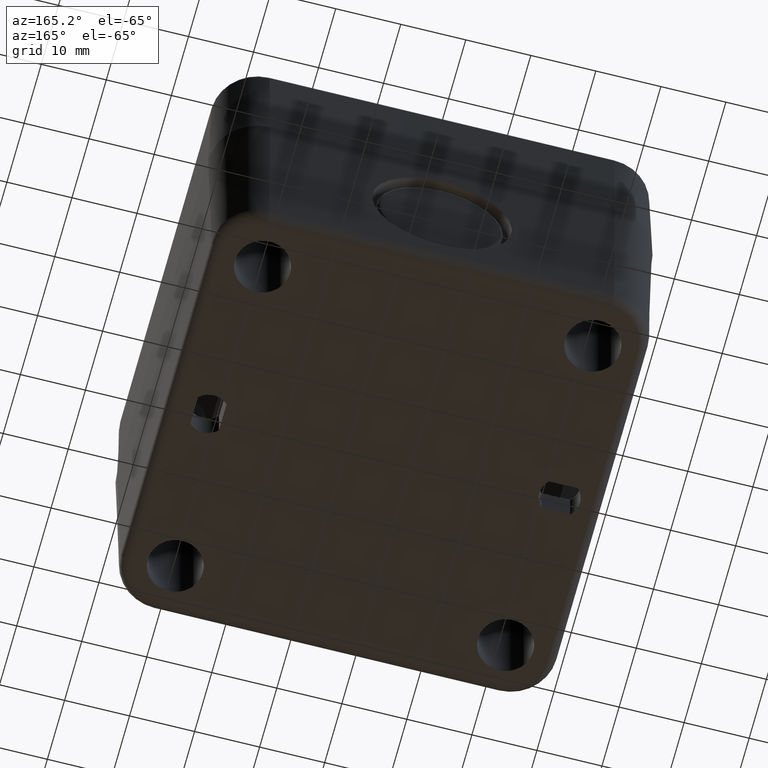
[diagram: clean part render]
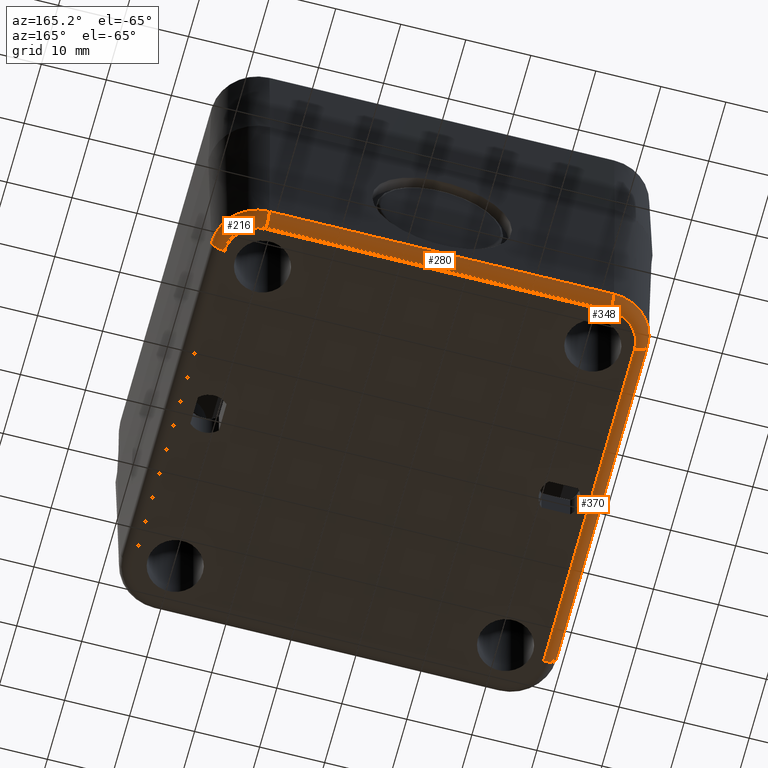
[diagram: same view with one multi-face feature highlighted, each face labeled with its STEP entity id]
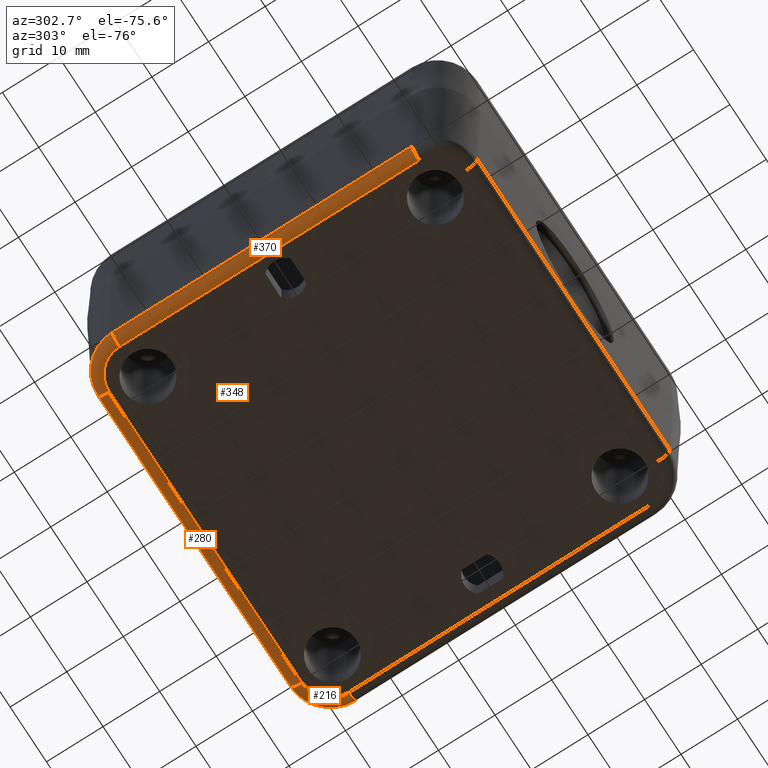
[diagram: same view with one multi-face feature highlighted, each face labeled with its STEP entity id]
A machine part, auxiliary view. The highlighted faces form ONE feature: a constant-radius fillet chain: 4 tangent blend faces with common blend radius 2 mm. The faces share edges in the B-rep.
A second angle (auxiliary view) of the same feature is appended — it is thin or edge-on in the first view.
Their STEP definitions:
[1] entity #370 (Cylinder):
#286=CARTESIAN_POINT('',(-49.406850161259896,-16.327564896536423,1.965095187125426));
#287=VERTEX_POINT('',#286);
#288=CARTESIAN_POINT('',(-47.407154770947116,-16.327564896536419,0.0));
#289=VERTEX_POINT('',#288);
#290=CARTESIAN_POINT('',(-47.407154770947116,-16.327564896536419,1.999999999999993));
#291=DIRECTION('',(2.220108E-015,-1.0,3.875213E-017));
#292=DIRECTION('',(-0.999847695156391,-2.220446E-015,-0.017452406437283));
#293=AXIS2_PLACEMENT_3D('',#290,#291,#292);
#294=CIRCLE('',#293,1.999999999999994);
#295=EDGE_CURVE('',#287,#289,#294,.T.);
#320=CARTESIAN_POINT('',(-47.407154770947145,36.672435103463599,0.0));
#321=VERTEX_POINT('',#320);
#322=CARTESIAN_POINT('',(-49.406850161259925,36.672435103463599,1.965095187125426));
#323=VERTEX_POINT('',#322);
#324=CARTESIAN_POINT('',(-47.407154770947145,36.672435103463599,1.999999999999993));
#325=DIRECTION('',(0.0,1.0,0.0));
#326=DIRECTION('',(0.0,0.0,-1.0));
#327=AXIS2_PLACEMENT_3D('',#324,#325,#326);
#328=CIRCLE('',#327,1.999999999999993);
#329=EDGE_CURVE('',#321,#323,#328,.T.);
#349=CARTESIAN_POINT('',(-47.407154770947116,-3.077564896536415,2.0));
#350=DIRECTION('',(5.027425E-016,-1.0,0.0));
#351=DIRECTION('',(-0.700909264299853,-3.891421E-016,-0.713250449154180));
#352=AXIS2_PLACEMENT_3D('',#349,#350,#351);
#353=CYLINDRICAL_SURFACE('',#352,2.0);
#354=ORIENTED_EDGE('',*,*,#295,.F.);
#355=CARTESIAN_POINT('',(-49.406850161259896,-16.327564896536423,1.965095187125426));
#356=DIRECTION('',(0.0,1.0,0.0));
#357=VECTOR('',#356,53.000000000000021);
#358=LINE('',#355,#357);
#359=EDGE_CURVE('',#287,#323,#358,.T.);
#360=ORIENTED_EDGE('',*,*,#359,.T.);
#361=ORIENTED_EDGE('',*,*,#329,.F.);
#362=CARTESIAN_POINT('',(-47.407154770947145,36.672435103463599,0.0));
#363=DIRECTION('',(0.0,-1.0,0.0));
#364=VECTOR('',#363,53.000000000000014);
#365=LINE('',#362,#364);
#366=EDGE_CURVE('',#321,#289,#365,.T.);
#367=ORIENTED_EDGE('',*,*,#366,.T.);
#368=EDGE_LOOP('',(#354,#360,#361,#367));
#369=FACE_OUTER_BOUND('',#368,.T.);
#370=ADVANCED_FACE('',(#369),#353,.T.);
[2] entity #348 (Torus):
#254=CARTESIAN_POINT('',(-42.372549297178509,41.707040577232220,0.0));
#255=VERTEX_POINT('',#254);
#256=CARTESIAN_POINT('',(-42.372549297178509,43.706735967545001,1.965095187125433));
#257=VERTEX_POINT('',#256);
#258=CARTESIAN_POINT('',(-42.372549297178509,41.707040577232220,2.0));
#259=DIRECTION('',(1.0,0.0,0.0));
#260=DIRECTION('',(0.0,0.0,-1.0));
#261=AXIS2_PLACEMENT_3D('',#258,#259,#260);
#262=CIRCLE('',#261,2.0);
#263=EDGE_CURVE('',#255,#257,#262,.T.);
#315=CARTESIAN_POINT('',(-42.372549297178509,36.672435103463599,1.999999999999993));
#316=DIRECTION('',(0.0,0.0,1.0));
#317=DIRECTION('',(1.0,0.0,0.0));
#318=AXIS2_PLACEMENT_3D('',#315,#316,#317);
#319=TOROIDAL_SURFACE('',#318,5.034605473768633,2.0);
#320=CARTESIAN_POINT('',(-47.407154770947145,36.672435103463599,0.0));
#321=VERTEX_POINT('',#320);
#322=CARTESIAN_POINT('',(-49.406850161259925,36.672435103463599,1.965095187125426));
#323=VERTEX_POINT('',#322);
#324=CARTESIAN_POINT('',(-47.407154770947145,36.672435103463599,1.999999999999993));
#325=DIRECTION('',(0.0,1.0,0.0));
#326=DIRECTION('',(0.0,0.0,-1.0));
#327=AXIS2_PLACEMENT_3D('',#324,#325,#326);
#328=CIRCLE('',#327,1.999999999999993);
#329=EDGE_CURVE('',#321,#323,#328,.T.);
#330=ORIENTED_EDGE('',*,*,#329,.T.);
#331=CARTESIAN_POINT('',(-42.372549297178509,36.672435103463599,1.965095187125426));
#332=DIRECTION('',(0.0,0.0,-1.000000000000000));
#333=DIRECTION('',(-0.707106781186547,0.707106781186547,0.0));
#334=AXIS2_PLACEMENT_3D('',#331,#332,#333);
#335=CIRCLE('',#334,7.034300864081411);
#336=EDGE_CURVE('',#323,#257,#335,.T.);
#337=ORIENTED_EDGE('',*,*,#336,.T.);
#338=ORIENTED_EDGE('',*,*,#263,.F.);
#339=CARTESIAN_POINT('',(-42.372549297178509,36.672435103463599,0.0));
#340=DIRECTION('',(0.0,0.0,1.000000000000000));
#341=DIRECTION('',(-0.707106781186548,0.707106781186548,0.0));
#342=AXIS2_PLACEMENT_3D('',#339,#340,#341);
#343=CIRCLE('',#342,5.034605473768633);
#344=EDGE_CURVE('',#255,#321,#343,.T.);
#345=ORIENTED_EDGE('',*,*,#344,.T.);
#346=EDGE_LOOP('',(#330,#337,#338,#345));
#347=FACE_OUTER_BOUND('',#346,.T.);
#348=ADVANCED_FACE('',(#347),#319,.T.);
[3] entity #280 (Cylinder):
#188=CARTESIAN_POINT('',(10.627450702821491,41.707040577232220,0.0));
#189=VERTEX_POINT('',#188);
#190=CARTESIAN_POINT('',(10.627450702821491,43.706735967545008,1.965095187125425));
#191=VERTEX_POINT('',#190);
#192=CARTESIAN_POINT('',(10.627450702821491,41.707040577232220,1.999999999999993));
#193=DIRECTION('',(1.0,0.0,0.0));
#194=DIRECTION('',(0.0,0.0,-1.0));
#195=AXIS2_PLACEMENT_3D('',#192,#193,#194);
#196=CIRCLE('',#195,1.999999999999993);
#197=EDGE_CURVE('',#189,#191,#196,.T.);
#249=CARTESIAN_POINT('',(-29.122549297178519,41.707040577232220,2.0));
#250=DIRECTION('',(-1.0,-1.675808E-016,0.0));
#251=DIRECTION('',(0.0,0.700909264299850,-0.713250449154183));
#252=AXIS2_PLACEMENT_3D('',#249,#250,#251);
#253=CYLINDRICAL_SURFACE('',#252,2.0);
#254=CARTESIAN_POINT('',(-42.372549297178509,41.707040577232220,0.0));
#255=VERTEX_POINT('',#254);
#256=CARTESIAN_POINT('',(-42.372549297178509,43.706735967545001,1.965095187125433));
#257=VERTEX_POINT('',#256);
#258=CARTESIAN_POINT('',(-42.372549297178509,41.707040577232220,2.0));
#259=DIRECTION('',(1.0,0.0,0.0));
#260=DIRECTION('',(0.0,0.0,-1.0));
#261=AXIS2_PLACEMENT_3D('',#258,#259,#260);
#262=CIRCLE('',#261,2.0);
#263=EDGE_CURVE('',#255,#257,#262,.T.);
#264=ORIENTED_EDGE('',*,*,#263,.T.);
#265=CARTESIAN_POINT('',(-42.372549297178509,43.706735967545001,1.965095187125433));
#266=DIRECTION('',(1.0,0.0,0.0));
#267=VECTOR('',#266,53.0);
#268=LINE('',#265,#267);
#269=EDGE_CURVE('',#257,#191,#268,.T.);
#270=ORIENTED_EDGE('',*,*,#269,.T.);
#271=ORIENTED_EDGE('',*,*,#197,.F.);
#272=CARTESIAN_POINT('',(10.627450702821491,41.707040577232220,0.0));
#273=DIRECTION('',(-1.0,0.0,0.0));
#274=VECTOR('',#273,53.0);
#275=LINE('',#272,#274);
#276=EDGE_CURVE('',#189,#255,#275,.T.);
#277=ORIENTED_EDGE('',*,*,#276,.T.);
#278=EDGE_LOOP('',(#264,#270,#271,#277));
#279=FACE_OUTER_BOUND('',#278,.T.);
#280=ADVANCED_FACE('',(#279),#253,.T.);
[4] entity #216 (Torus):
#123=CARTESIAN_POINT('',(15.662056176590111,36.672435103463599,0.0));
#124=VERTEX_POINT('',#123);
#131=CARTESIAN_POINT('',(17.661751566902893,36.672435103463599,1.965095187125433));
#132=VERTEX_POINT('',#131);
#133=CARTESIAN_POINT('',(15.662056176590111,36.672435103463599,2.0));
#134=DIRECTION('',(0.0,-1.0,0.0));
#135=DIRECTION('',(0.0,0.0,-1.0));
#136=AXIS2_PLACEMENT_3D('',#133,#134,#135);
#137=CIRCLE('',#136,2.0);
#138=EDGE_CURVE('',#124,#132,#137,.T.);
#183=CARTESIAN_POINT('',(10.627450702821491,36.672435103463599,1.999999999999993));
#184=DIRECTION('',(0.0,0.0,1.0));
#185=DIRECTION('',(1.0,0.0,0.0));
#186=AXIS2_PLACEMENT_3D('',#183,#184,#185);
#187=TOROIDAL_SURFACE('',#186,5.034605473768627,2.0);
#188=CARTESIAN_POINT('',(10.627450702821491,41.707040577232220,0.0));
#189=VERTEX_POINT('',#188);
#190=CARTESIAN_POINT('',(10.627450702821491,43.706735967545008,1.965095187125425));
#191=VERTEX_POINT('',#190);
#192=CARTESIAN_POINT('',(10.627450702821491,41.707040577232220,1.999999999999993));
#193=DIRECTION('',(1.0,0.0,0.0));
#194=DIRECTION('',(0.0,0.0,-1.0));
#195=AXIS2_PLACEMENT_3D('',#192,#193,#194);
#196=CIRCLE('',#195,1.999999999999993);
#197=EDGE_CURVE('',#189,#191,#196,.T.);
#198=ORIENTED_EDGE('',*,*,#197,.T.);
#199=CARTESIAN_POINT('',(10.627450702821491,36.672435103463599,1.965095187125426));
#200=DIRECTION('',(0.0,0.0,-1.0));
#201=DIRECTION('',(0.707106781186547,0.707106781186548,0.0));
#202=AXIS2_PLACEMENT_3D('',#199,#200,#201);
#203=CIRCLE('',#202,7.034300864081410);
#204=EDGE_CURVE('',#191,#132,#203,.T.);
#205=ORIENTED_EDGE('',*,*,#204,.T.);
#206=ORIENTED_EDGE('',*,*,#138,.F.);
#207=CARTESIAN_POINT('',(10.627450702821491,36.672435103463599,0.0));
#208=DIRECTION('',(0.0,0.0,1.0));
#209=DIRECTION('',(0.707106781186547,0.707106781186548,0.0));
#210=AXIS2_PLACEMENT_3D('',#207,#208,#209);
#211=CIRCLE('',#210,5.034605473768628);
#212=EDGE_CURVE('',#124,#189,#211,.T.);
#213=ORIENTED_EDGE('',*,*,#212,.T.);
#214=EDGE_LOOP('',(#198,#205,#206,#213));
#215=FACE_OUTER_BOUND('',#214,.T.);
#216=ADVANCED_FACE('',(#215),#187,.T.);